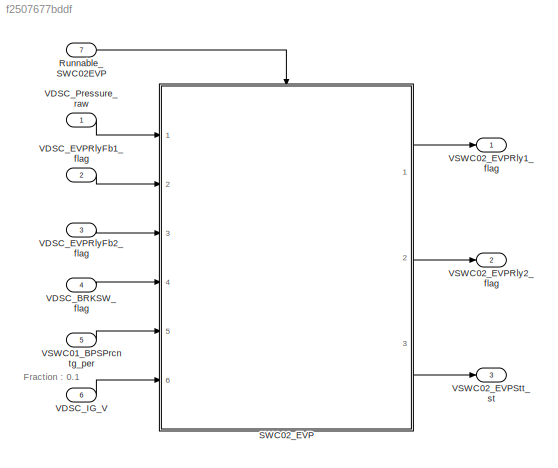
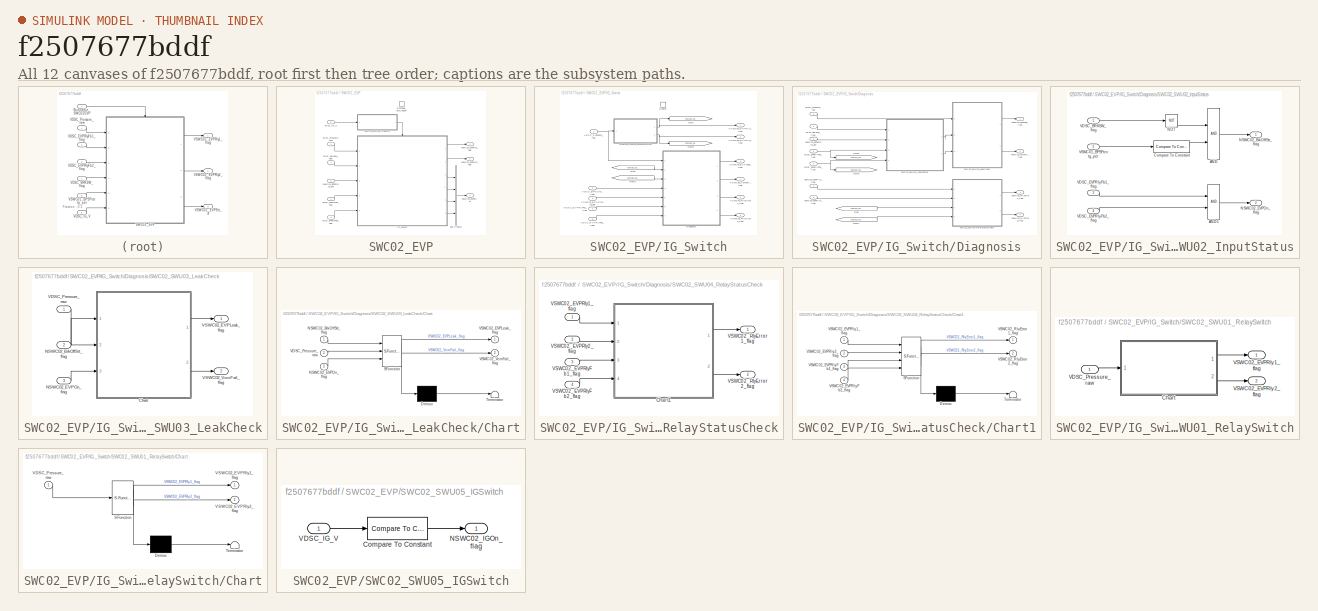
[diagram: thumbnail index - all 12 canvases of the model, root first then tree order]
MODEL slx_f2507677bddf
KIND model
CONFIG AbsTol = auto
CONFIG EnableMultiTasking = off
CONFIG FixedStep = Ts
CONFIG MaxStep = auto
CONFIG MinStep = auto
CONFIG RelTol = 1e-3
CONFIG SampleTimeConstraint = Unconstrained
CONFIG SolverName = FixedStepDiscrete
CONFIG StartTime = 0.0
CONFIG StopTime = 10.0
WORKSPACE source: mxarray member
WORKSPACE BrkOffPstn: Simulink.Parameter (value not decoded)
BLOCK [Inport] Runnable_SWC02EVP
  OutputFunctionCall = on
  Port = 7
BLOCK [SubSystem] SWC02_EVP
  Ports = [6, 3, 0, 1]
  RequestExecContextInheritance = off
  TreatAsAtomicUnit = on
BLOCK [BusCreator] SWC02_EVP/Bus Creator
  DisplayOption = bar
  InheritFromInputs = on
  Inputs = 4
  Ports = [4, 1]
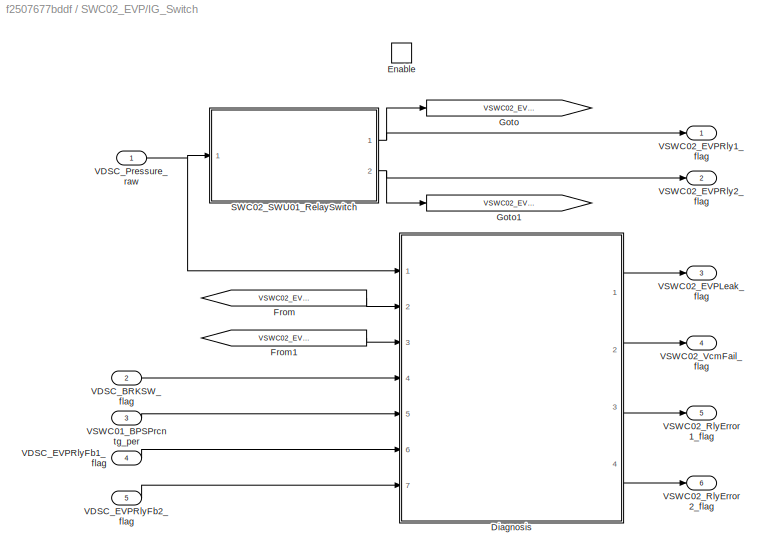
BLOCK [SubSystem] SWC02_EVP/IG_Switch
  Ports = [5, 6, 1]
  RequestExecContextInheritance = off
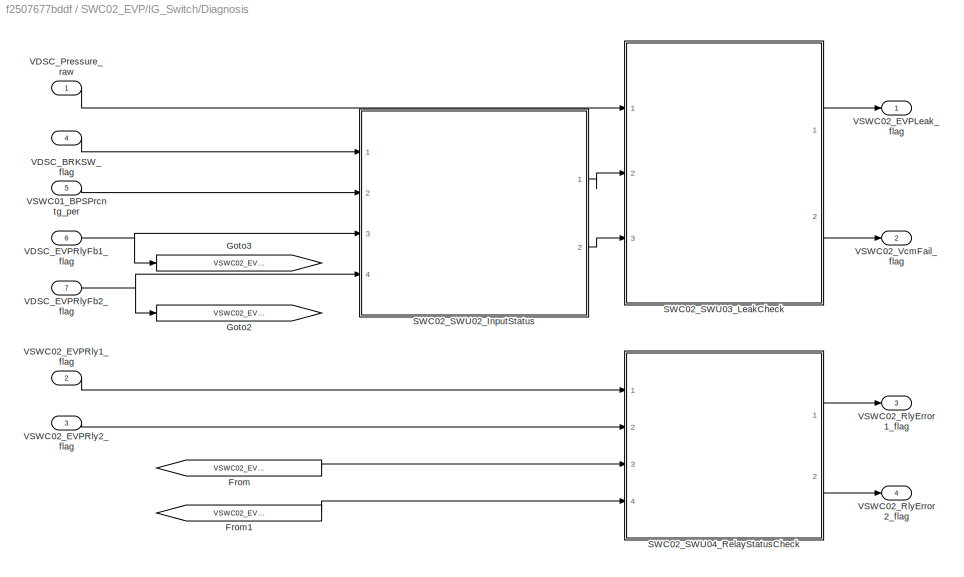
BLOCK [SubSystem] SWC02_EVP/IG_Switch/Diagnosis
  Ports = [7, 4]
  RequestExecContextInheritance = off
BLOCK [From] SWC02_EVP/IG_Switch/Diagnosis/From
  GotoTag = VSWC02_EVPRlyFb1_flag
BLOCK [From] SWC02_EVP/IG_Switch/Diagnosis/From1
  GotoTag = VSWC02_EVPRlyFb2_flag
BLOCK [Goto] SWC02_EVP/IG_Switch/Diagnosis/Goto2
  GotoTag = VSWC02_EVPRlyFb2_flag
BLOCK [Goto] SWC02_EVP/IG_Switch/Diagnosis/Goto3
  GotoTag = VSWC02_EVPRlyFb1_flag
BLOCK [SubSystem] SWC02_EVP/IG_Switch/Diagnosis/SWC02_SWU02_InputStatus
  Ports = [4, 2]
  RTWFcnName = SWC02_SWU02_InputStatus
  RTWFcnNameOpts = User specified
  RTWSystemCode = Reusable function
  RequestExecContextInheritance = off
  TreatAsAtomicUnit = on
BLOCK [Logic] SWC02_EVP/IG_Switch/Diagnosis/SWC02_SWU02_InputStatus/AND
  AllPortsSameDT = off
  OutDataTypeStr = boolean
  Ports = [2, 1]
BLOCK [Logic] SWC02_EVP/IG_Switch/Diagnosis/SWC02_SWU02_InputStatus/AND1
  AllPortsSameDT = off
  OutDataTypeStr = boolean
  Ports = [2, 1]
BLOCK [Reference] SWC02_EVP/IG_Switch/Diagnosis/SWC02_SWU02_InputStatus/Compare To Constant  REF=simulink/Logic and Bit
Operations/Compare
To Constant
  Ports = [1, 1]
  SourceBlock = simulink/Logic and Bit\nOperations/Compare\nTo Constant
  SourceProductBaseCode = SL
  SourceType = Compare To Constant
BLOCK [Logic] SWC02_EVP/IG_Switch/Diagnosis/SWC02_SWU02_InputStatus/NOT
  AllPortsSameDT = off
  Operator = NOT
  OutDataTypeStr = boolean
  Ports = [1, 1]
BLOCK [Outport] SWC02_EVP/IG_Switch/Diagnosis/SWC02_SWU02_InputStatus/NSWC02_BrkOffStt_flag
BLOCK [Outport] SWC02_EVP/IG_Switch/Diagnosis/SWC02_SWU02_InputStatus/NSWC02_EVPOn_flag
  Port = 2
BLOCK [Inport] SWC02_EVP/IG_Switch/Diagnosis/SWC02_SWU02_InputStatus/VDSC_BRKSW_flag
BLOCK [Inport] SWC02_EVP/IG_Switch/Diagnosis/SWC02_SWU02_InputStatus/VDSC_EVPRlyFb1_flag
  Port = 3
BLOCK [Inport] SWC02_EVP/IG_Switch/Diagnosis/SWC02_SWU02_InputStatus/VDSC_EVPRlyFb2_flag
  Port = 4
BLOCK [Inport] SWC02_EVP/IG_Switch/Diagnosis/SWC02_SWU02_InputStatus/VSWC01_BPSPrcntg_per
  Port = 2
BLOCK [SubSystem] SWC02_EVP/IG_Switch/Diagnosis/SWC02_SWU03_LeakCheck
  Ports = [3, 2]
  RTWFcnName = SWC02_SWU03_LeakCheck
  RTWFcnNameOpts = User specified
  RTWSystemCode = Reusable function
  RequestExecContextInheritance = off
  TreatAsAtomicUnit = on
BLOCK [SubSystem] SWC02_EVP/IG_Switch/Diagnosis/SWC02_SWU03_LeakCheck/Chart
  ErrorFcn = Stateflow.Translate.translate
  PermitHierarchicalResolution = ExplicitOnly
  PortSchema = {"entries":[{"content":{"sides":[{"content":{"connectorIds":["In2","In1","In3"]},"type":"ConnectorPlacement.EquallySpacedRectSide","uuid":"75a4c2f7-8b67-4ffc-ba2f-7f2deabb0315"},{"content":{"connectorIds":["Out1","Out2"],"side":"RIGHT"},"type":"ConnectorPlacement.EquallySpacedRectSide","uuid":"3415e211-2fd3-4410-91fa-3a440a99130d"},{"content":{"connectorIds":[],"side":"TOP"},"type":"ConnectorPlace...<+259ch>
  Ports = [3, 2]
  RequestExecContextInheritance = off
  SFBlockType = Chart
  TreatAsAtomicUnit = on
BLOCK [Demux] SWC02_EVP/IG_Switch/Diagnosis/SWC02_SWU03_LeakCheck/Chart/ Demux 
  Outputs = 1
  Ports = [1, 1]
BLOCK [S-Function] SWC02_EVP/IG_Switch/Diagnosis/SWC02_SWU03_LeakCheck/Chart/ SFunction 
  EnableBusSupport = on
  FunctionName = sf_sfun
  Parameters = Ts
  PortCounts = [3 3]
  Ports = [3, 3]
  SFcnIsStateOwnerBlock = off
  SFunctionDeploymentMode = off
  Tag = Stateflow S-Function 3
BLOCK [Terminator] SWC02_EVP/IG_Switch/Diagnosis/SWC02_SWU03_LeakCheck/Chart/ Terminator 
BLOCK [Inport] SWC02_EVP/IG_Switch/Diagnosis/SWC02_SWU03_LeakCheck/Chart/NSWC02_BrkOffStt_flag
BLOCK [Inport] SWC02_EVP/IG_Switch/Diagnosis/SWC02_SWU03_LeakCheck/Chart/NSWC02_EVPOn_flag
  Port = 3
BLOCK [Inport] SWC02_EVP/IG_Switch/Diagnosis/SWC02_SWU03_LeakCheck/Chart/VDSC_Pressure_raw
  Port = 2
BLOCK [Outport] SWC02_EVP/IG_Switch/Diagnosis/SWC02_SWU03_LeakCheck/Chart/VSWC02_EVPLeak_flag
BLOCK [Outport] SWC02_EVP/IG_Switch/Diagnosis/SWC02_SWU03_LeakCheck/Chart/VSWC02_VcmFail_flag
  Port = 2
BLOCK [Inport] SWC02_EVP/IG_Switch/Diagnosis/SWC02_SWU03_LeakCheck/NSWC02_BrkOffStt_flag
  Port = 2
BLOCK [Inport] SWC02_EVP/IG_Switch/Diagnosis/SWC02_SWU03_LeakCheck/NSWC02_EVPOn_flag
  Port = 3
BLOCK [Inport] SWC02_EVP/IG_Switch/Diagnosis/SWC02_SWU03_LeakCheck/VDSC_Pressure_raw
BLOCK [Outport] SWC02_EVP/IG_Switch/Diagnosis/SWC02_SWU03_LeakCheck/VSWC02_EVPLeak_flag
BLOCK [Outport] SWC02_EVP/IG_Switch/Diagnosis/SWC02_SWU03_LeakCheck/VSWC02_VcmFail_flag
  Port = 2
BLOCK [SubSystem] SWC02_EVP/IG_Switch/Diagnosis/SWC02_SWU04_RelayStatusCheck
  Ports = [4, 2]
  RTWFcnName = SWC02_SWU04_RelayStatusCheck
  RTWFcnNameOpts = User specified
  RTWSystemCode = Reusable function
  RequestExecContextInheritance = off
  TreatAsAtomicUnit = on
BLOCK [SubSystem] SWC02_EVP/IG_Switch/Diagnosis/SWC02_SWU04_RelayStatusCheck/Chart1
  ErrorFcn = Stateflow.Translate.translate
  PermitHierarchicalResolution = ExplicitOnly
  Ports = [4, 2]
  RequestExecContextInheritance = off
  SFBlockType = Chart
  TreatAsAtomicUnit = on
BLOCK [Demux] SWC02_EVP/IG_Switch/Diagnosis/SWC02_SWU04_RelayStatusCheck/Chart1/ Demux 
  Outputs = 1
  Ports = [1, 1]
BLOCK [S-Function] SWC02_EVP/IG_Switch/Diagnosis/SWC02_SWU04_RelayStatusCheck/Chart1/ SFunction 
  EnableBusSupport = on
  FunctionName = sf_sfun
  Parameters = Ts
  PortCounts = [4 3]
  Ports = [4, 3]
  SFcnIsStateOwnerBlock = off
  SFunctionDeploymentMode = off
  Tag = Stateflow S-Function 4
BLOCK [Terminator] SWC02_EVP/IG_Switch/Diagnosis/SWC02_SWU04_RelayStatusCheck/Chart1/ Terminator 
BLOCK [Inport] SWC02_EVP/IG_Switch/Diagnosis/SWC02_SWU04_RelayStatusCheck/Chart1/VSWC02_EVPRly1_flag
BLOCK [Inport] SWC02_EVP/IG_Switch/Diagnosis/SWC02_SWU04_RelayStatusCheck/Chart1/VSWC02_EVPRly2_flag
  Port = 2
BLOCK [Inport] SWC02_EVP/IG_Switch/Diagnosis/SWC02_SWU04_RelayStatusCheck/Chart1/VSWC02_EVPRlyFb1_flag
  Port = 3
BLOCK [Inport] SWC02_EVP/IG_Switch/Diagnosis/SWC02_SWU04_RelayStatusCheck/Chart1/VSWC02_EVPRlyFb2_flag
  Port = 4
BLOCK [Outport] SWC02_EVP/IG_Switch/Diagnosis/SWC02_SWU04_RelayStatusCheck/Chart1/VSWC02_RlyError1_flag
BLOCK [Outport] SWC02_EVP/IG_Switch/Diagnosis/SWC02_SWU04_RelayStatusCheck/Chart1/VSWC02_RlyError2_flag
  Port = 2
BLOCK [Inport] SWC02_EVP/IG_Switch/Diagnosis/SWC02_SWU04_RelayStatusCheck/VSWC02_EVPRly1_flag
BLOCK [Inport] SWC02_EVP/IG_Switch/Diagnosis/SWC02_SWU04_RelayStatusCheck/VSWC02_EVPRly2_flag
  Port = 2
BLOCK [Inport] SWC02_EVP/IG_Switch/Diagnosis/SWC02_SWU04_RelayStatusCheck/VSWC02_EVPRlyFb1_flag
  Port = 3
BLOCK [Inport] SWC02_EVP/IG_Switch/Diagnosis/SWC02_SWU04_RelayStatusCheck/VSWC02_EVPRlyFb2_flag
  Port = 4
BLOCK [Outport] SWC02_EVP/IG_Switch/Diagnosis/SWC02_SWU04_RelayStatusCheck/VSWC02_RlyError1_flag
BLOCK [Outport] SWC02_EVP/IG_Switch/Diagnosis/SWC02_SWU04_RelayStatusCheck/VSWC02_RlyError2_flag
  Port = 2
BLOCK [Inport] SWC02_EVP/IG_Switch/Diagnosis/VDSC_BRKSW_flag
  Port = 4
BLOCK [Inport] SWC02_EVP/IG_Switch/Diagnosis/VDSC_EVPRlyFb1_flag
  Port = 6
BLOCK [Inport] SWC02_EVP/IG_Switch/Diagnosis/VDSC_EVPRlyFb2_flag
  Port = 7
BLOCK [Inport] SWC02_EVP/IG_Switch/Diagnosis/VDSC_Pressure_raw
BLOCK [Inport] SWC02_EVP/IG_Switch/Diagnosis/VSWC01_BPSPrcntg_per
  Port = 5
BLOCK [Outport] SWC02_EVP/IG_Switch/Diagnosis/VSWC02_EVPLeak_flag
BLOCK [Inport] SWC02_EVP/IG_Switch/Diagnosis/VSWC02_EVPRly1_flag
  Port = 2
BLOCK [Inport] SWC02_EVP/IG_Switch/Diagnosis/VSWC02_EVPRly2_flag
  Port = 3
BLOCK [Outport] SWC02_EVP/IG_Switch/Diagnosis/VSWC02_RlyError1_flag
  Port = 3
BLOCK [Outport] SWC02_EVP/IG_Switch/Diagnosis/VSWC02_RlyError2_flag
  Port = 4
BLOCK [Outport] SWC02_EVP/IG_Switch/Diagnosis/VSWC02_VcmFail_flag
  Port = 2
BLOCK [EnablePort] SWC02_EVP/IG_Switch/Enable
  Ports = []
  StatesWhenEnabling = reset
BLOCK [From] SWC02_EVP/IG_Switch/From
  GotoTag = VSWC02_EVPRly1_flag
BLOCK [From] SWC02_EVP/IG_Switch/From1
  GotoTag = VSWC02_EVPRly2_flag
BLOCK [Goto] SWC02_EVP/IG_Switch/Goto
  GotoTag = VSWC02_EVPRly1_flag
BLOCK [Goto] SWC02_EVP/IG_Switch/Goto1
  GotoTag = VSWC02_EVPRly2_flag
BLOCK [SubSystem] SWC02_EVP/IG_Switch/SWC02_SWU01_RelaySwitch
  Ports = [1, 2]
  RTWFcnName = SWC02_SWU01_RelaySwitch
  RTWFcnNameOpts = User specified
  RTWSystemCode = Reusable function
  RequestExecContextInheritance = off
  TreatAsAtomicUnit = on
BLOCK [SubSystem] SWC02_EVP/IG_Switch/SWC02_SWU01_RelaySwitch/Chart
  ErrorFcn = Stateflow.Translate.translate
  PermitHierarchicalResolution = ExplicitOnly
  Ports = [1, 2]
  RequestExecContextInheritance = off
  SFBlockType = Chart
  TreatAsAtomicUnit = on
BLOCK [Demux] SWC02_EVP/IG_Switch/SWC02_SWU01_RelaySwitch/Chart/ Demux 
  Outputs = 1
  Ports = [1, 1]
BLOCK [S-Function] SWC02_EVP/IG_Switch/SWC02_SWU01_RelaySwitch/Chart/ SFunction 
  EnableBusSupport = on
  FunctionName = sf_sfun
  Parameters = PrssrDiff_High,PrssrDiff_Low
  PortCounts = [1 3]
  Ports = [1, 3]
  SFcnIsStateOwnerBlock = off
  SFunctionDeploymentMode = off
  Tag = Stateflow S-Function 2
BLOCK [Terminator] SWC02_EVP/IG_Switch/SWC02_SWU01_RelaySwitch/Chart/ Terminator 
BLOCK [Inport] SWC02_EVP/IG_Switch/SWC02_SWU01_RelaySwitch/Chart/VDSC_Pressure_raw
BLOCK [Outport] SWC02_EVP/IG_Switch/SWC02_SWU01_RelaySwitch/Chart/VSWC02_EVPRly1_flag
BLOCK [Outport] SWC02_EVP/IG_Switch/SWC02_SWU01_RelaySwitch/Chart/VSWC02_EVPRly2_flag
  Port = 2
BLOCK [Inport] SWC02_EVP/IG_Switch/SWC02_SWU01_RelaySwitch/VDSC_Pressure_raw
BLOCK [Outport] SWC02_EVP/IG_Switch/SWC02_SWU01_RelaySwitch/VSWC02_EVPRly1_flag
BLOCK [Outport] SWC02_EVP/IG_Switch/SWC02_SWU01_RelaySwitch/VSWC02_EVPRly2_flag
  Port = 2
BLOCK [Inport] SWC02_EVP/IG_Switch/VDSC_BRKSW_flag
  Port = 2
BLOCK [Inport] SWC02_EVP/IG_Switch/VDSC_EVPRlyFb1_flag
  Port = 4
BLOCK [Inport] SWC02_EVP/IG_Switch/VDSC_EVPRlyFb2_flag
  Port = 5
BLOCK [Inport] SWC02_EVP/IG_Switch/VDSC_Pressure_raw
BLOCK [Inport] SWC02_EVP/IG_Switch/VSWC01_BPSPrcntg_per
  Port = 3
BLOCK [Outport] SWC02_EVP/IG_Switch/VSWC02_EVPLeak_flag
  InitialOutput = false
  OutputWhenDisabled = reset
  Port = 3
BLOCK [Outport] SWC02_EVP/IG_Switch/VSWC02_EVPRly1_flag
  InitialOutput = false
  OutputWhenDisabled = reset
BLOCK [Outport] SWC02_EVP/IG_Switch/VSWC02_EVPRly2_flag
  InitialOutput = false
  OutputWhenDisabled = reset
  Port = 2
BLOCK [Outport] SWC02_EVP/IG_Switch/VSWC02_RlyError1_flag
  InitialOutput = false
  OutputWhenDisabled = reset
  Port = 5
BLOCK [Outport] SWC02_EVP/IG_Switch/VSWC02_RlyError2_flag
  InitialOutput = false
  OutputWhenDisabled = reset
  Port = 6
BLOCK [Outport] SWC02_EVP/IG_Switch/VSWC02_VcmFail_flag
  InitialOutput = false
  OutputWhenDisabled = reset
  Port = 4
BLOCK [TriggerPort] SWC02_EVP/Runnable_SWC03EVP
  Ports = []
  StatesWhenEnabling = held
  TriggerType = function-call
  VariantControl = (inherit)
BLOCK [SubSystem] SWC02_EVP/SWC02_SWU05_IGSwitch
  Ports = [1, 1]
  RTWFcnName = SWC02_SWU05_IGSwitch
  RTWFcnNameOpts = User specified
  RTWSystemCode = Reusable function
  RequestExecContextInheritance = off
  TreatAsAtomicUnit = on
BLOCK [Reference] SWC02_EVP/SWC02_SWU05_IGSwitch/Compare To Constant  REF=simulink/Logic and Bit
Operations/Compare
To Constant
  Ports = [1, 1]
  SourceBlock = simulink/Logic and Bit\nOperations/Compare\nTo Constant
  SourceProductBaseCode = SL
  SourceType = Compare To Constant
BLOCK [Outport] SWC02_EVP/SWC02_SWU05_IGSwitch/NSWC02_IGOn_flag
BLOCK [Inport] SWC02_EVP/SWC02_SWU05_IGSwitch/VDSC_IG_V
BLOCK [Inport] SWC02_EVP/VDSC_BRKSW_flag
  Port = 4
BLOCK [Inport] SWC02_EVP/VDSC_EVPRlyFb1_flag
  Port = 2
BLOCK [Inport] SWC02_EVP/VDSC_EVPRlyFb2_flag
  Port = 3
BLOCK [Inport] SWC02_EVP/VDSC_IG_V
  Port = 6
BLOCK [Inport] SWC02_EVP/VDSC_Pressure_raw
BLOCK [Inport] SWC02_EVP/VSWC01_BPSPrcntg_per
  Port = 5
BLOCK [Outport] SWC02_EVP/VSWC02_EVPRly1_flag
BLOCK [Outport] SWC02_EVP/VSWC02_EVPRly2_flag
  Port = 2
BLOCK [Outport] SWC02_EVP/VSWC02_EVPStt_st
  Port = 3
BLOCK [Inport] VDSC_BRKSW_flag
  OutDataTypeStr = boolean
  OutMax = 1
  OutMin = 0
  Port = 4
  PortDimensions = 1
BLOCK [Inport] VDSC_EVPRlyFb1_flag
  OutDataTypeStr = boolean
  OutMax = 1
  OutMin = 0
  Port = 2
BLOCK [Inport] VDSC_EVPRlyFb2_flag
  OutDataTypeStr = boolean
  OutMax = 1
  OutMin = 0
  Port = 3
BLOCK [Inport] VDSC_IG_V
  OutDataTypeStr = uint8
  OutMax = 120
  OutMin = 0
  Port = 6
  PortDimensions = 1
  Unit = V
BLOCK [Inport] VDSC_Pressure_raw
  OutDataTypeStr = uint16
BLOCK [Inport] VSWC01_BPSPrcntg_per
  OutDataTypeStr = uint8
  OutMax = 100
  OutMin = 0
  Port = 5
  PortDimensions = 1
  Unit = %
BLOCK [Outport] VSWC02_EVPRly1_flag
  OutDataTypeStr = boolean
BLOCK [Outport] VSWC02_EVPRly2_flag
  Port = 2
BLOCK [Outport] VSWC02_EVPStt_st
  Port = 3
ANNOTATION (root): Fraction : 0.1
LINE Runnable_SWC02EVP:1 -> SWC02_EVP:trigger
LINE SWC02_EVP/Bus Creator:1 -> SWC02_EVP/VSWC02_EVPStt_st:1
LINE SWC02_EVP/IG_Switch/Diagnosis/From1:1 -> SWC02_EVP/IG_Switch/Diagnosis/SWC02_SWU04_RelayStatusCheck:4
LINE SWC02_EVP/IG_Switch/Diagnosis/From:1 -> SWC02_EVP/IG_Switch/Diagnosis/SWC02_SWU04_RelayStatusCheck:3
LINE SWC02_EVP/IG_Switch/Diagnosis/SWC02_SWU02_InputStatus/AND1:1 -> SWC02_EVP/IG_Switch/Diagnosis/SWC02_SWU02_InputStatus/NSWC02_EVPOn_flag:1
LINE SWC02_EVP/IG_Switch/Diagnosis/SWC02_SWU02_InputStatus/AND:1 -> SWC02_EVP/IG_Switch/Diagnosis/SWC02_SWU02_InputStatus/NSWC02_BrkOffStt_flag:1
LINE SWC02_EVP/IG_Switch/Diagnosis/SWC02_SWU02_InputStatus/Compare To Constant:1 -> SWC02_EVP/IG_Switch/Diagnosis/SWC02_SWU02_InputStatus/AND:2
LINE SWC02_EVP/IG_Switch/Diagnosis/SWC02_SWU02_InputStatus/NOT:1 -> SWC02_EVP/IG_Switch/Diagnosis/SWC02_SWU02_InputStatus/AND:1
LINE SWC02_EVP/IG_Switch/Diagnosis/SWC02_SWU02_InputStatus/VDSC_BRKSW_flag:1 -> SWC02_EVP/IG_Switch/Diagnosis/SWC02_SWU02_InputStatus/NOT:1
LINE SWC02_EVP/IG_Switch/Diagnosis/SWC02_SWU02_InputStatus/VDSC_EVPRlyFb1_flag:1 -> SWC02_EVP/IG_Switch/Diagnosis/SWC02_SWU02_InputStatus/AND1:1
LINE SWC02_EVP/IG_Switch/Diagnosis/SWC02_SWU02_InputStatus/VDSC_EVPRlyFb2_flag:1 -> SWC02_EVP/IG_Switch/Diagnosis/SWC02_SWU02_InputStatus/AND1:2
LINE SWC02_EVP/IG_Switch/Diagnosis/SWC02_SWU02_InputStatus/VSWC01_BPSPrcntg_per:1 -> SWC02_EVP/IG_Switch/Diagnosis/SWC02_SWU02_InputStatus/Compare To Constant:1
LINE SWC02_EVP/IG_Switch/Diagnosis/SWC02_SWU02_InputStatus:1 -> SWC02_EVP/IG_Switch/Diagnosis/SWC02_SWU03_LeakCheck:2
LINE SWC02_EVP/IG_Switch/Diagnosis/SWC02_SWU02_InputStatus:2 -> SWC02_EVP/IG_Switch/Diagnosis/SWC02_SWU03_LeakCheck:3
LINE SWC02_EVP/IG_Switch/Diagnosis/SWC02_SWU03_LeakCheck/Chart:1 -> SWC02_EVP/IG_Switch/Diagnosis/SWC02_SWU03_LeakCheck/VSWC02_EVPLeak_flag:1
LINE SWC02_EVP/IG_Switch/Diagnosis/SWC02_SWU03_LeakCheck/Chart:2 -> SWC02_EVP/IG_Switch/Diagnosis/SWC02_SWU03_LeakCheck/VSWC02_VcmFail_flag:1
LINE SWC02_EVP/IG_Switch/Diagnosis/SWC02_SWU03_LeakCheck/NSWC02_BrkOffStt_flag:1 -> SWC02_EVP/IG_Switch/Diagnosis/SWC02_SWU03_LeakCheck/Chart:1
LINE SWC02_EVP/IG_Switch/Diagnosis/SWC02_SWU03_LeakCheck/NSWC02_EVPOn_flag:1 -> SWC02_EVP/IG_Switch/Diagnosis/SWC02_SWU03_LeakCheck/Chart:3
LINE SWC02_EVP/IG_Switch/Diagnosis/SWC02_SWU03_LeakCheck/VDSC_Pressure_raw:1 -> SWC02_EVP/IG_Switch/Diagnosis/SWC02_SWU03_LeakCheck/Chart:2
LINE SWC02_EVP/IG_Switch/Diagnosis/SWC02_SWU03_LeakCheck:1 -> SWC02_EVP/IG_Switch/Diagnosis/VSWC02_EVPLeak_flag:1
LINE SWC02_EVP/IG_Switch/Diagnosis/SWC02_SWU03_LeakCheck:2 -> SWC02_EVP/IG_Switch/Diagnosis/VSWC02_VcmFail_flag:1
LINE SWC02_EVP/IG_Switch/Diagnosis/SWC02_SWU04_RelayStatusCheck/Chart1:1 -> SWC02_EVP/IG_Switch/Diagnosis/SWC02_SWU04_RelayStatusCheck/VSWC02_RlyError1_flag:1
LINE SWC02_EVP/IG_Switch/Diagnosis/SWC02_SWU04_RelayStatusCheck/Chart1:2 -> SWC02_EVP/IG_Switch/Diagnosis/SWC02_SWU04_RelayStatusCheck/VSWC02_RlyError2_flag:1
LINE SWC02_EVP/IG_Switch/Diagnosis/SWC02_SWU04_RelayStatusCheck/VSWC02_EVPRly1_flag:1 -> SWC02_EVP/IG_Switch/Diagnosis/SWC02_SWU04_RelayStatusCheck/Chart1:1
LINE SWC02_EVP/IG_Switch/Diagnosis/SWC02_SWU04_RelayStatusCheck/VSWC02_EVPRly2_flag:1 -> SWC02_EVP/IG_Switch/Diagnosis/SWC02_SWU04_RelayStatusCheck/Chart1:2
LINE SWC02_EVP/IG_Switch/Diagnosis/SWC02_SWU04_RelayStatusCheck/VSWC02_EVPRlyFb1_flag:1 -> SWC02_EVP/IG_Switch/Diagnosis/SWC02_SWU04_RelayStatusCheck/Chart1:3
LINE SWC02_EVP/IG_Switch/Diagnosis/SWC02_SWU04_RelayStatusCheck/VSWC02_EVPRlyFb2_flag:1 -> SWC02_EVP/IG_Switch/Diagnosis/SWC02_SWU04_RelayStatusCheck/Chart1:4
LINE SWC02_EVP/IG_Switch/Diagnosis/SWC02_SWU04_RelayStatusCheck:1 -> SWC02_EVP/IG_Switch/Diagnosis/VSWC02_RlyError1_flag:1
LINE SWC02_EVP/IG_Switch/Diagnosis/SWC02_SWU04_RelayStatusCheck:2 -> SWC02_EVP/IG_Switch/Diagnosis/VSWC02_RlyError2_flag:1
LINE SWC02_EVP/IG_Switch/Diagnosis/VDSC_BRKSW_flag:1 -> SWC02_EVP/IG_Switch/Diagnosis/SWC02_SWU02_InputStatus:1
NET SWC02_EVP/IG_Switch/Diagnosis/VDSC_EVPRlyFb1_flag:1 -> SWC02_EVP/IG_Switch/Diagnosis/Goto3:1, SWC02_EVP/IG_Switch/Diagnosis/SWC02_SWU02_InputStatus:3
NET SWC02_EVP/IG_Switch/Diagnosis/VDSC_EVPRlyFb2_flag:1 -> SWC02_EVP/IG_Switch/Diagnosis/Goto2:1, SWC02_EVP/IG_Switch/Diagnosis/SWC02_SWU02_InputStatus:4
LINE SWC02_EVP/IG_Switch/Diagnosis/VDSC_Pressure_raw:1 -> SWC02_EVP/IG_Switch/Diagnosis/SWC02_SWU03_LeakCheck:1
LINE SWC02_EVP/IG_Switch/Diagnosis/VSWC01_BPSPrcntg_per:1 -> SWC02_EVP/IG_Switch/Diagnosis/SWC02_SWU02_InputStatus:2
LINE SWC02_EVP/IG_Switch/Diagnosis/VSWC02_EVPRly1_flag:1 -> SWC02_EVP/IG_Switch/Diagnosis/SWC02_SWU04_RelayStatusCheck:1
LINE SWC02_EVP/IG_Switch/Diagnosis/VSWC02_EVPRly2_flag:1 -> SWC02_EVP/IG_Switch/Diagnosis/SWC02_SWU04_RelayStatusCheck:2
LINE SWC02_EVP/IG_Switch/Diagnosis:1 -> SWC02_EVP/IG_Switch/VSWC02_EVPLeak_flag:1
LINE SWC02_EVP/IG_Switch/Diagnosis:2 -> SWC02_EVP/IG_Switch/VSWC02_VcmFail_flag:1
LINE SWC02_EVP/IG_Switch/Diagnosis:3 -> SWC02_EVP/IG_Switch/VSWC02_RlyError1_flag:1
LINE SWC02_EVP/IG_Switch/Diagnosis:4 -> SWC02_EVP/IG_Switch/VSWC02_RlyError2_flag:1
LINE SWC02_EVP/IG_Switch/From1:1 -> SWC02_EVP/IG_Switch/Diagnosis:3
LINE SWC02_EVP/IG_Switch/From:1 -> SWC02_EVP/IG_Switch/Diagnosis:2
LINE SWC02_EVP/IG_Switch/SWC02_SWU01_RelaySwitch/Chart:1 -> SWC02_EVP/IG_Switch/SWC02_SWU01_RelaySwitch/VSWC02_EVPRly1_flag:1
LINE SWC02_EVP/IG_Switch/SWC02_SWU01_RelaySwitch/Chart:2 -> SWC02_EVP/IG_Switch/SWC02_SWU01_RelaySwitch/VSWC02_EVPRly2_flag:1
LINE SWC02_EVP/IG_Switch/SWC02_SWU01_RelaySwitch/VDSC_Pressure_raw:1 -> SWC02_EVP/IG_Switch/SWC02_SWU01_RelaySwitch/Chart:1
NET SWC02_EVP/IG_Switch/SWC02_SWU01_RelaySwitch:1 -> SWC02_EVP/IG_Switch/Goto:1, SWC02_EVP/IG_Switch/VSWC02_EVPRly1_flag:1
NET SWC02_EVP/IG_Switch/SWC02_SWU01_RelaySwitch:2 -> SWC02_EVP/IG_Switch/Goto1:1, SWC02_EVP/IG_Switch/VSWC02_EVPRly2_flag:1
LINE SWC02_EVP/IG_Switch/VDSC_BRKSW_flag:1 -> SWC02_EVP/IG_Switch/Diagnosis:4
LINE SWC02_EVP/IG_Switch/VDSC_EVPRlyFb1_flag:1 -> SWC02_EVP/IG_Switch/Diagnosis:6
LINE SWC02_EVP/IG_Switch/VDSC_EVPRlyFb2_flag:1 -> SWC02_EVP/IG_Switch/Diagnosis:7
NET SWC02_EVP/IG_Switch/VDSC_Pressure_raw:1 -> SWC02_EVP/IG_Switch/Diagnosis:1, SWC02_EVP/IG_Switch/SWC02_SWU01_RelaySwitch:1
LINE SWC02_EVP/IG_Switch/VSWC01_BPSPrcntg_per:1 -> SWC02_EVP/IG_Switch/Diagnosis:5
LINE SWC02_EVP/IG_Switch:1 -> SWC02_EVP/VSWC02_EVPRly1_flag:1
LINE SWC02_EVP/IG_Switch:2 -> SWC02_EVP/VSWC02_EVPRly2_flag:1
LINE SWC02_EVP/IG_Switch:3 -> SWC02_EVP/Bus Creator:1
LINE SWC02_EVP/IG_Switch:4 -> SWC02_EVP/Bus Creator:2
LINE SWC02_EVP/IG_Switch:5 -> SWC02_EVP/Bus Creator:3
LINE SWC02_EVP/IG_Switch:6 -> SWC02_EVP/Bus Creator:4
LINE SWC02_EVP/SWC02_SWU05_IGSwitch/Compare To Constant:1 -> SWC02_EVP/SWC02_SWU05_IGSwitch/NSWC02_IGOn_flag:1
LINE SWC02_EVP/SWC02_SWU05_IGSwitch/VDSC_IG_V:1 -> SWC02_EVP/SWC02_SWU05_IGSwitch/Compare To Constant:1
LINE SWC02_EVP/SWC02_SWU05_IGSwitch:1 -> SWC02_EVP/IG_Switch:enable
LINE SWC02_EVP/VDSC_BRKSW_flag:1 -> SWC02_EVP/IG_Switch:2
LINE SWC02_EVP/VDSC_EVPRlyFb1_flag:1 -> SWC02_EVP/IG_Switch:4
LINE SWC02_EVP/VDSC_EVPRlyFb2_flag:1 -> SWC02_EVP/IG_Switch:5
LINE SWC02_EVP/VDSC_IG_V:1 -> SWC02_EVP/SWC02_SWU05_IGSwitch:1
LINE SWC02_EVP/VDSC_Pressure_raw:1 -> SWC02_EVP/IG_Switch:1
LINE SWC02_EVP/VSWC01_BPSPrcntg_per:1 -> SWC02_EVP/IG_Switch:3
LINE SWC02_EVP:1 -> VSWC02_EVPRly1_flag:1
LINE SWC02_EVP:2 -> VSWC02_EVPRly2_flag:1
LINE SWC02_EVP:3 -> VSWC02_EVPStt_st:1
LINE VDSC_BRKSW_flag:1 -> SWC02_EVP:4
LINE VDSC_EVPRlyFb1_flag:1 -> SWC02_EVP:2
LINE VDSC_EVPRlyFb2_flag:1 -> SWC02_EVP:3
LINE VDSC_IG_V:1 -> SWC02_EVP:6
LINE VDSC_Pressure_raw:1 -> SWC02_EVP:1
LINE VSWC01_BPSPrcntg_per:1 -> SWC02_EVP:5
note: NET lines group one-source signal fan-out (src -> all destinations, sorted); 1:1 wires keep LINE
CHART SWC02_EVP/IG_Switch/SWC02_SWU01_RelaySwitch/Chart states=2 transitions=3
  STATE_LABEL 'Off\n VSWC02_EVPRly1_flag = false;\n VSWC02_EVPRly2_flag = false;'
  STATE_LABEL 'On\n VSWC02_EVPRly1_flag = true;\n VSWC02_EVPRly2_flag = true;'
CHART SWC02_EVP/IG_Switch/Diagnosis/SWC02_SWU03_LeakCheck/Chart states=10 transitions=30
  STATE_LABEL 'EVPLeak'
  STATE_LABEL 'Stop\n First60s = false;'
  STATE_LABEL 'Start'
  STATE_LABEL 'Check'
  STATE_LABEL '[First60s]'
  STATE_LABEL '[Prssr60s - VDSC_Pressure_raw > 300]'
  STATE_LABEL '{\n VSWC02_EVPLeak_flag = false;\n}'
  STATE_LABEL '{\n VSWC02_EVPLeak_flag = true;\n}'
  STATE_LABEL '{\n Prssr60s = VDSC_Pressure_raw;\n First60s = true; \n}'
  STATE_LABEL 'Wait'
  STATE_LABEL '[after(60/Ts -1,tick)]'
  STATE_LABEL '[NSWC02_BrkOffStt_flag]'
  STATE_LABEL '[!NSWC02_BrkOffStt_flag]'
  STATE_LABEL 'Stop\n First60s = false;'
  STATE_LABEL 'Start'
  STATE_LABEL 'Check'
  STATE_LABEL '[First60s]'
  STATE_LABEL '[Prssr60s - VDSC_Pressure_raw > 300]'
  STATE_LABEL '{\n VSWC02_EVPLeak_flag = false;\n}'
  STATE_LABEL '{\n VSWC02_EVPLeak_flag = true;\n}'
  STATE_LABEL '{\n Prssr60s = VDSC_Pressure_raw;\n First60s = true; \n}'
  STATE_LABEL 'Wait'
  STATE_LABEL '[after(60/Ts -1,tick)]'
  STATE_LABEL 'Check'
  STATE_LABEL '[First60s]'
  STATE_LABEL '[Prssr60s - VDSC_Pressure_raw > 300]'
  STATE_LABEL '{\n VSWC02_EVPLeak_flag = false;\n}'
  STATE_LABEL '{\n VSWC02_EVPLeak_flag = true;\n}'
  STATE_LABEL '{\n Prssr60s = VDSC_Pressure_raw;\n First60s = true; \n}'
  STATE_LABEL 'Wait'
  STATE_LABEL 'VcmFail'
  STATE_LABEL 'Stop\n First10s = false;'
  STATE_LABEL 'Start'
  STATE_LABEL 'Check'
  STATE_LABEL '[First10s]'
  STATE_LABEL '[VDSC_Pressure_raw - Prssr10s < 200]'
  STATE_LABEL '{\n VSWC02_VcmFail_flag = false;\n}'
  STATE_LABEL '{\n VSWC02_VcmFail_flag = true;\n}'
  STATE_LABEL '{\n Prssr10s = VDSC_Pressure_raw;\n First10s = true;\n}'
  STATE_LABEL 'Wait'
CHART SWC02_EVP/IG_Switch/Diagnosis/SWC02_SWU04_RelayStatusCheck/Chart1 states=1 transitions=1
  STATE_LABEL 'Check\nentry:\n past1 = VSWC02_EVPRly1_flag;\n past2 = VSWC02_EVPRly2_flag;\non every(0.2/Ts,tick):\n VSWC02_RlyError1_flag = (VSWC02_EVPRlyFb1_flag ~= past1);\n VSWC02_RlyError2_flag = (VSWC02_EVPRlyFb2_flag ~= past2);\n past1 = VSWC02_EVPRly1_flag;\n past2 = VSWC02_EVPRly2_flag;'
CHART  states=0 transitions=0
CHART  states=0 transitions=0
CHART  states=0 transitions=0
